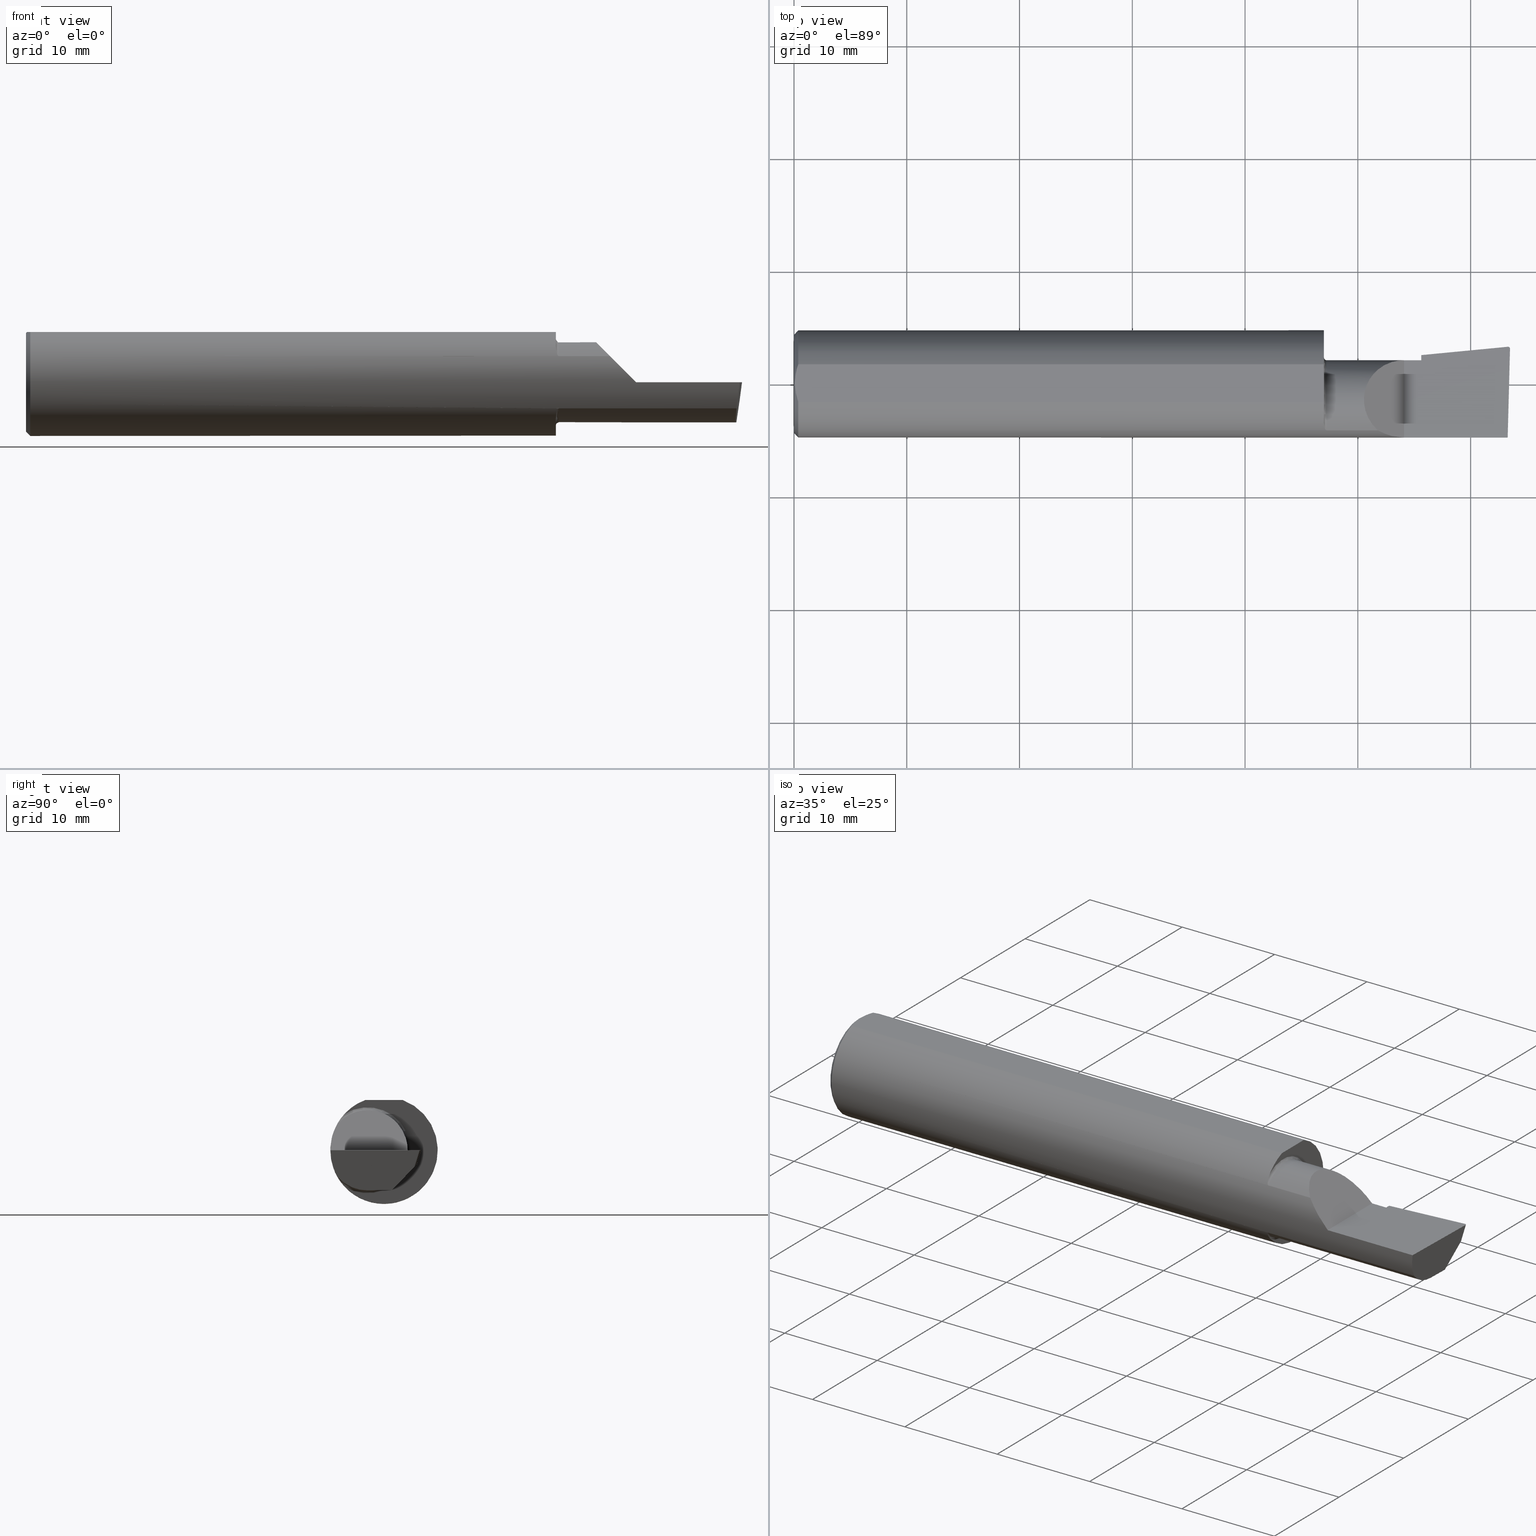
[diagram: canonical four-view strip — front | top / right | iso, engineering-drawing reading convention]
A machine part, canonical four-view strip (front | top / right | iso — engineering-drawing reading convention). The complete STEP part file that produces these views, byte-faithful:
ISO-10303-21;
HEADER;
FILE_DESCRIPTION (( 'STEP AP203' ),
    '1' );
FILE_NAME ('213657-B320600R.STEP',
    '2024-04-12T23:11:10',
    ( '' ),
    ( '' ),
    'SwSTEP 2.0',
    'SolidWorks 2022',
    '' );
FILE_SCHEMA (( 'CONFIG_CONTROL_DESIGN' ));
ENDSEC;

DATA;
#1 = EDGE_CURVE ( 'NONE', #558, #126, #669, .T. ) ;
#2 = CARTESIAN_POINT ( 'NONE',  ( 2.499806390372749210, 0.1232563466314183787, 6.833120963331979760E-17 ) ) ;
#3 = ORIENTED_EDGE ( 'NONE', *, *, #1, .T. ) ;
#4 = CARTESIAN_POINT ( 'NONE',  ( 2.486346664144835739, 0.1139780975458775103, -0.04999999999999999584 ) ) ;
#5 = AXIS2_PLACEMENT_3D ( 'NONE', #471, #527, #468 ) ;
#6 = ORIENTED_EDGE ( 'NONE', *, *, #367, .T. ) ;
#7 = CARTESIAN_POINT ( 'NONE',  ( 1.850530357231195522, -0.1482623167742068426, 0.1147852156680473495 ) ) ;
#8 = ORIENTED_EDGE ( 'NONE', *, *, #573, .F. ) ;
#9 = CARTESIAN_POINT ( 'NONE',  ( 2.491672876940991710, -0.1873499999999999888, 6.915950918908297591E-17 ) ) ;
#10 = AXIS2_PLACEMENT_3D ( 'NONE', #476, #200, #363 ) ;
#11 = ORIENTED_EDGE ( 'NONE', *, *, #444, .T. ) ;
#12 = DIRECTION ( 'NONE',  ( -1.000000000000000000, -6.829619984160658046E-18, -0.000000000000000000 ) ) ;
#13 = ORIENTED_EDGE ( 'NONE', *, *, #399, .T. ) ;
#14 = CARTESIAN_POINT ( 'NONE',  ( 2.189999999999999947, 0.06670933817657886955, -0.06931012851386068874 ) ) ;
#15 = EDGE_LOOP ( 'NONE', ( #172, #425, #663, #174, #437, #22, #238, #591, #234, #598 ) ) ;
#16 = CALENDAR_DATE ( 2024, 12, 4 ) ;
#17 = ORIENTED_EDGE ( 'NONE', *, *, #347, .F. ) ;
#18 = CARTESIAN_POINT ( 'NONE',  ( 2.493512870449283714, 0.1299961668063693288, 6.829619984160658046E-17 ) ) ;
#19 = ADVANCED_FACE ( 'NONE', ( #291 ), #589, .T. ) ;
#20 = AXIS2_PLACEMENT_3D ( 'NONE', #56, #549, #114 ) ;
#21 = CC_DESIGN_APPROVAL ( #366, ( #586 ) ) ;
#22 = ORIENTED_EDGE ( 'NONE', *, *, #117, .T. ) ;
#23 = CARTESIAN_POINT ( 'NONE',  ( 2.491672876940991710, -0.1873499999999999888, 6.915950918908297591E-17 ) ) ;
#24 = ORIENTED_EDGE ( 'NONE', *, *, #475, .F. ) ;
#25 = CALENDAR_DATE ( 2024, 12, 4 ) ;
#26 = EDGE_CURVE ( 'NONE', #184, #557, #296, .T. ) ;
#27 = DIRECTION ( 'NONE',  ( 0.000000000000000000, 1.000000000000000000, 0.000000000000000000 ) ) ;
#28 = LINE ( 'NONE', #404, #358 ) ;
#29 = EDGE_CURVE ( 'NONE', #118, #619, #276, .T. ) ;
#30 = DATE_AND_TIME ( #402, #493 ) ;
#31 = ORIENTED_EDGE ( 'NONE', *, *, #393, .T. ) ;
#32 = DIRECTION ( 'NONE',  ( -1.000000000000000000, -6.829619984160658046E-18, -0.000000000000000000 ) ) ;
#33 = AXIS2_PLACEMENT_3D ( 'NONE', #107, #692, #494 ) ;
#34 =( BOUNDED_CURVE ( )  B_SPLINE_CURVE ( 3, ( #563, #131, #349, #658 ),
 .UNSPECIFIED., .F., .T. ) 
 B_SPLINE_CURVE_WITH_KNOTS ( ( 4, 4 ),
 ( 5.422530673488458852, 7.853981633974482790 ),
 .UNSPECIFIED. ) 
 CURVE ( )  GEOMETRIC_REPRESENTATION_ITEM ( )  RATIONAL_B_SPLINE_CURVE ( ( 1.000000000000000000, 0.5651045289226863666, 0.5651045289226863666, 1.000000000000000000 ) ) 
 REPRESENTATION_ITEM ( '' )  );
#35 = DATE_AND_TIME ( #179, #526 ) ;
#36 = CARTESIAN_POINT ( 'NONE',  ( 2.475850273311264615, -0.1244607267090816621, -0.1422282308645907711 ) ) ;
#37 = CARTESIAN_POINT ( 'NONE',  ( 1.855249642630817153, -0.1607705839484630805, -0.09620717711675592920 ) ) ;
#38 = CARTESIAN_POINT ( 'NONE',  ( 2.486748873877666188, 0.1140025764947606296, -0.05001468779820768262 ) ) ;
#39 = DIRECTION ( 'NONE',  ( -1.000000000000000000, -6.829619984160658046E-18, -0.000000000000000000 ) ) ;
#40 = CARTESIAN_POINT ( 'NONE',  ( 2.024999999999999911, -0.1635956445993030084, -0.09130436773856176469 ) ) ;
#41 = VECTOR ( 'NONE', #410, 39.37007874015748143 ) ;
#42 = CARTESIAN_POINT ( 'NONE',  ( 2.097861799102314961, -0.1873500000000000165, 0.03213820089768509858 ) ) ;
#43 = DIRECTION ( 'NONE',  ( -1.000000000000000000, -0.000000000000000000, -0.000000000000000000 ) ) ;
#44 = CARTESIAN_POINT ( 'NONE',  ( 0.01499999999999999424, 0.000000000000000000, 0.000000000000000000 ) ) ;
#45 = CARTESIAN_POINT ( 'NONE',  ( 1.856503643436637763, -0.1620795007490428707, -0.09397341491037329575 ) ) ;
#46 = EDGE_CURVE ( 'NONE', #506, #557, #34, .T. ) ;
#47 = CARTESIAN_POINT ( 'NONE',  ( 2.129999999999999893, 0.08264999999999990410, 1.065442715258197396E-16 ) ) ;
#48 = VECTOR ( 'NONE', #491, 39.37007874015748854 ) ;
#49 = CARTESIAN_POINT ( 'NONE',  ( 0.004115035183746292881, 0.02255629470626744487, 0.1753499999999999781 ) ) ;
#50 = PRODUCT_DEFINITION_FORMATION_WITH_SPECIFIED_SOURCE ( 'ANY', '', #602, .NOT_KNOWN. ) ;
#51 = ORIENTED_EDGE ( 'NONE', *, *, #472, .F. ) ;
#52 = DIRECTION ( 'NONE',  ( 0.000000000000000000, -1.438723400918613551E-16, -1.000000000000000000 ) ) ;
#53 = CIRCLE ( 'NONE', #576, 0.1873499999999999888 ) ;
#54 = ORIENTED_EDGE ( 'NONE', *, *, #29, .F. ) ;
#55 = PLANE ( 'NONE',  #143 ) ;
#56 = CARTESIAN_POINT ( 'NONE',  ( 1.860000000000000098, -0.05739999999999999963, 0.000000000000000000 ) ) ;
#57 = ORIENTED_EDGE ( 'NONE', *, *, #367, .F. ) ;
#58 = LINE ( 'NONE', #109, #652 ) ;
#59 = FACE_OUTER_BOUND ( 'NONE', #540, .T. ) ;
#60 = ORIENTED_EDGE ( 'NONE', *, *, #627, .T. ) ;
#61 = CARTESIAN_POINT ( 'NONE',  ( 2.493766568580444432, 0.1168246249203732934, -0.04780233936830599606 ) ) ;
#62 = CARTESIAN_POINT ( 'NONE',  ( 0.000000000000000000, -0.05740000000000001351, 0.000000000000000000 ) ) ;
#63 = ORIENTED_EDGE ( 'NONE', *, *, #196, .F. ) ;
#64 = DIRECTION ( 'NONE',  ( 4.755568962650852797E-18, -0.6963153109074924352, -0.7177360153954948085 ) ) ;
#65 = CIRCLE ( 'NONE', #313, 0.1500499999999999889 ) ;
#66 = ORIENTED_EDGE ( 'NONE', *, *, #1, .F. ) ;
#67 = PERSON_AND_ORGANIZATION ( #140, #620 ) ;
#68 = VERTEX_POINT ( 'NONE', #80 ) ;
#69 = CARTESIAN_POINT ( 'NONE',  ( 2.189999999999999947, 0.08544315931885974880, -0.04999999999999999584 ) ) ;
#70 = VERTEX_POINT ( 'NONE', #345 ) ;
#71 = PERSON_AND_ORGANIZATION_ROLE ( 'design_supplier' ) ;
#72 = VERTEX_POINT ( 'NONE', #242 ) ;
#73 = DIRECTION ( 'NONE',  ( -0.09165774897393341725, 0.9519021185660614393, -0.2923717047227303856 ) ) ;
#74 = AXIS2_PLACEMENT_3D ( 'NONE', #564, #32, #508 ) ;
#75 = ORIENTED_EDGE ( 'NONE', *, *, #545, .T. ) ;
#76 = ADVANCED_FACE ( 'NONE', ( #355 ), #570, .T. ) ;
#77 = APPROVAL_STATUS ( 'not_yet_approved' ) ;
#78 = EDGE_LOOP ( 'NONE', ( #31, #150, #60, #83 ) ) ;
#79 = CARTESIAN_POINT ( 'NONE',  ( 2.484117089522337452, -0.1792580844883771007, -0.06324101202936138755 ) ) ;
#80 = CARTESIAN_POINT ( 'NONE',  ( 2.491786964307025176, 0.1037103972642545030, -0.06112352112763053125 ) ) ;
#81 = DIRECTION ( 'NONE',  ( 0.000000000000000000, -1.000000000000000000, 0.000000000000000000 ) ) ;
#82 = PERSON_AND_ORGANIZATION ( #140, #620 ) ;
#83 = ORIENTED_EDGE ( 'NONE', *, *, #97, .F. ) ;
#84 = DIRECTION ( 'NONE',  ( -0.9922060308645608284, 0.02598182930461468559, 0.1218693434050591162 ) ) ;
#85 = EDGE_CURVE ( 'NONE', #434, #228, #90, .T. ) ;
#86 = TOROIDAL_SURFACE ( 'NONE', #20, 0.1500499999999999889, 0.009999999999999944697 ) ;
#87 = LOCAL_TIME ( 16, 11, 10.00000000000000000, #616 ) ;
#88 = DIRECTION ( 'NONE',  ( -0.1240019227988267692, -0.3022330132596590113, -0.9451342385281470415 ) ) ;
#89 = CARTESIAN_POINT ( 'NONE',  ( 1.858200855161538323, -0.1632467142437135921, -0.09192985110639206869 ) ) ;
#90 = LINE ( 'NONE', #677, #528 ) ;
#91 = CARTESIAN_POINT ( 'NONE',  ( 0.01499999999999997863, -0.06597272163553657975, 0.1753499999999999781 ) ) ;
#92 = CARTESIAN_POINT ( 'NONE',  ( 2.486947077001955719, 0.1139931928746992507, -0.05004403198038587242 ) ) ;
#93 =( BOUNDED_CURVE ( )  B_SPLINE_CURVE ( 3, ( #588, #253, #102, #592 ),
 .UNSPECIFIED., .F., .T. ) 
 B_SPLINE_CURVE_WITH_KNOTS ( ( 4, 4 ),
 ( 3.156599629463173073, 4.715023529952365955 ),
 .UNSPECIFIED. ) 
 CURVE ( )  GEOMETRIC_REPRESENTATION_ITEM ( )  RATIONAL_B_SPLINE_CURVE ( ( 1.000000000000000000, 0.8076450242550562431, 0.8076450242550562431, 1.000000000000000000 ) ) 
 REPRESENTATION_ITEM ( '' )  );
#94 = LINE ( 'NONE', #421, #672 ) ;
#95 = DIRECTION ( 'NONE',  ( 0.000000000000000000, 0.000000000000000000, -1.000000000000000000 ) ) ;
#96 = CIRCLE ( 'NONE', #389, 0.1400499999999999801 ) ;
#97 = EDGE_CURVE ( 'NONE', #487, #118, #65, .T. ) ;
#98 = CARTESIAN_POINT ( 'NONE',  ( 0.004093196532652216939, -0.02240707710020816909, 0.1753499999999999504 ) ) ;
#99 = VECTOR ( 'NONE', #324, 39.37007874015748143 ) ;
#100 = DIRECTION ( 'NONE',  ( 0.000000000000000000, -1.000000000000000000, 0.000000000000000000 ) ) ;
#101 = PLANE ( 'NONE',  #170 ) ;
#102 = CARTESIAN_POINT ( 'NONE',  ( 2.492671897414695081, 0.1095727882432247086, -0.05516861643763537604 ) ) ;
#103 = DIRECTION ( 'NONE',  ( 1.000000000000000000, 0.000000000000000000, 0.000000000000000000 ) ) ;
#104 = VERTEX_POINT ( 'NONE', #411 ) ;
#105 = LINE ( 'NONE', #192, #197 ) ;
#106 = B_SPLINE_CURVE_WITH_KNOTS ( 'NONE', 3,
 ( #211, #432, #7, #215, #273, #435, #387, #651, #162, #384, #604, #220 ),
 .UNSPECIFIED., .F., .F.,
 ( 4, 2, 2, 2, 2, 4 ),
 ( 0.0009392928737449068215, 0.001524303482983960841, 0.001816808787603487905, 0.001963061439913248510, 0.002036187766068128704, 0.002109314092223008898 ),
 .UNSPECIFIED. ) ;
#107 = CARTESIAN_POINT ( 'NONE',  ( 2.189999999999999947, 0.1008003950587628567, 0.000000000000000000 ) ) ;
#108 = ORIENTED_EDGE ( 'NONE', *, *, #315, .F. ) ;
#109 = CARTESIAN_POINT ( 'NONE',  ( 0.01499999999999999424, 0.000000000000000000, -0.1873499999999999888 ) ) ;
#110 = DIRECTION ( 'NONE',  ( 0.000000000000000000, 0.000000000000000000, 1.000000000000000000 ) ) ;
#111 = AXIS2_PLACEMENT_3D ( 'NONE', #541, #154, #263 ) ;
#112 = EDGE_LOOP ( 'NONE', ( #375, #274, #460, #232, #6, #650, #403, #24 ) ) ;
#113 = DIRECTION ( 'NONE',  ( -0.7071067811865511255, 0.000000000000000000, 0.7071067811865437980 ) ) ;
#114 = DIRECTION ( 'NONE',  ( 6.829619984160658046E-18, -1.000000000000000000, 0.000000000000000000 ) ) ;
#115 = ORIENTED_EDGE ( 'NONE', *, *, #168, .F. ) ;
#116 = CARTESIAN_POINT ( 'NONE',  ( 1.850000000000000311, -0.1383256097560975062, -0.1263568288047932087 ) ) ;
#117 = EDGE_CURVE ( 'NONE', #557, #567, #305, .T. ) ;
#118 = VERTEX_POINT ( 'NONE', #198 ) ;
#119 = LINE ( 'NONE', #61, #608 ) ;
#120 = CARTESIAN_POINT ( 'NONE',  ( 1.850000000000000311, 0.000000000000000000, 0.000000000000000000 ) ) ;
#121 = DIRECTION ( 'NONE',  ( -1.000000000000000000, 0.000000000000000000, 1.033731667140896077E-16 ) ) ;
#122 = DIRECTION ( 'NONE',  ( -0.000000000000000000, 1.000000000000000000, -0.000000000000000000 ) ) ;
#123 = CARTESIAN_POINT ( 'NONE',  ( 2.189999999999999947, 0.06670933817657886955, -0.06931012851386068874 ) ) ;
#124 = ORIENTED_EDGE ( 'NONE', *, *, #420, .F. ) ;
#125 = CALENDAR_DATE ( 2024, 12, 4 ) ;
#126 = VERTEX_POINT ( 'NONE', #417 ) ;
#127 = DIRECTION ( 'NONE',  ( -4.858719700838190352E-34, -8.537024980200821325E-17, 1.000000000000000000 ) ) ;
#128 = AXIS2_PLACEMENT_3D ( 'NONE', #350, #181, #81 ) ;
#129 = ORIENTED_EDGE ( 'NONE', *, *, #545, .F. ) ;
#130 = DATE_AND_TIME ( #16, #310 ) ;
#131 = CARTESIAN_POINT ( 'NONE',  ( 1.921229036482944075, -0.06260079402492431389, 0.2087709635170538203 ) ) ;
#132 = CARTESIAN_POINT ( 'NONE',  ( 1.850000000000000311, -0.1383256097560975062, 0.1263568288047932087 ) ) ;
#133 = VECTOR ( 'NONE', #406, 39.37007874015748143 ) ;
#134 = DESIGN_CONTEXT ( 'detailed design', #321, 'design' ) ;
#135 = APPLICATION_PROTOCOL_DEFINITION ( 'international standard', 'config_control_design', 1994, #321 ) ;
#136 = CARTESIAN_POINT ( 'NONE',  ( 2.481080296960508580, -0.1635956445993030084, -0.09130436773856176469 ) ) ;
#137 = CARTESIAN_POINT ( 'NONE',  ( 1.850000000000000311, 0.06597272163553663527, 0.1753499999999999781 ) ) ;
#138 = AXIS2_PLACEMENT_3D ( 'NONE', #682, #368, #529 ) ;
#139 = EDGE_CURVE ( 'NONE', #104, #513, #53, .T. ) ;
#140 = PERSON ( 'UNSPECIFIED', 'UNSPECIFIED', 'UNSPECIFIED', ('UNSPECIFIED'), ('UNSPECIFIED'), ('UNSPECIFIED') ) ;
#141 = CARTESIAN_POINT ( 'NONE',  ( 2.066758987970638284, -0.1792580844883770730, 0.06324101202936138755 ) ) ;
#142 = CARTESIAN_POINT ( 'NONE',  ( 2.499910038027473025, 0.1272144908750952319, 6.760805322059822821E-17 ) ) ;
#143 = AXIS2_PLACEMENT_3D ( 'NONE', #547, #645, #113 ) ;
#144 = CARTESIAN_POINT ( 'NONE',  ( 2.189999999999999947, 0.08265000000000004288, 3.267291166268305196E-16 ) ) ;
#145 = CARTESIAN_POINT ( 'NONE',  ( 2.486548593472165170, 0.1139975411286092838, -0.05000000000000003053 ) ) ;
#146 = EDGE_CURVE ( 'NONE', #323, #625, #464, .T. ) ;
#147 = DIRECTION ( 'NONE',  ( 0.000000000000000000, 0.000000000000000000, 1.000000000000000000 ) ) ;
#148 = CARTESIAN_POINT ( 'NONE',  ( 2.490039159128059953, -0.2497391662021650194, 6.932588350567417155E-17 ) ) ;
#149 = AXIS2_PLACEMENT_3D ( 'NONE', #120, #507, #27 ) ;
#150 = ORIENTED_EDGE ( 'NONE', *, *, #623, .T. ) ;
#151 = DIRECTION ( 'NONE',  ( 0.000000000000000000, 1.000000000000000000, 8.537024980200821325E-17 ) ) ;
#152 =( LENGTH_UNIT ( ) NAMED_UNIT ( * ) SI_UNIT ( $, .METRE. ) );
#153 = ORIENTED_EDGE ( 'NONE', *, *, #593, .T. ) ;
#154 = DIRECTION ( 'NONE',  ( -1.000000000000000000, -6.829619984160658046E-18, 0.000000000000000000 ) ) ;
#155 = AXIS2_PLACEMENT_3D ( 'NONE', #597, #110, #326 ) ;
#156 = CARTESIAN_POINT ( 'NONE',  ( 1.850000000000000311, 0.2373500000000000332, 0.1753499999999999504 ) ) ;
#157 = ORIENTED_EDGE ( 'NONE', *, *, #690, .T. ) ;
#158 = LINE ( 'NONE', #278, #408 ) ;
#159 = LINE ( 'NONE', #322, #630 ) ;
#160 = CC_DESIGN_DATE_AND_TIME_ASSIGNMENT ( #30, #280, ( #586 ) ) ;
#161 = EDGE_LOOP ( 'NONE', ( #503, #666, #504, #214, #334, #383, #129, #621, #552, #17, #283, #54, #268 ) ) ;
#162 = CARTESIAN_POINT ( 'NONE',  ( 1.857002686248069967, -0.1625222757049325228, 0.09320450095779621302 ) ) ;
#163 = EDGE_CURVE ( 'NONE', #319, #513, #473, .T. ) ;
#164 = EDGE_CURVE ( 'NONE', #262, #294, #478, .T. ) ;
#165 = CARTESIAN_POINT ( 'NONE',  ( 0.003000000000000218638, 2.334609556160449697E-17, 0.1753499999999999781 ) ) ;
#166 = ORIENTED_EDGE ( 'NONE', *, *, #475, .T. ) ;
#167 = FACE_OUTER_BOUND ( 'NONE', #187, .T. ) ;
#168 = EDGE_CURVE ( 'NONE', #340, #72, #423, .T. ) ;
#169 = SHAPE_DEFINITION_REPRESENTATION ( #492, #426 ) ;
#170 = AXIS2_PLACEMENT_3D ( 'NONE', #477, #362, #199 ) ;
#171 = AXIS2_PLACEMENT_3D ( 'NONE', #62, #12, #427 ) ;
#172 = ORIENTED_EDGE ( 'NONE', *, *, #572, .F. ) ;
#173 = CARTESIAN_POINT ( 'NONE',  ( 1.860000000000000098, -0.1635956445993029251, -0.09130436773856194510 ) ) ;
#174 = ORIENTED_EDGE ( 'NONE', *, *, #247, .T. ) ;
#175 = ORIENTED_EDGE ( 'NONE', *, *, #352, .T. ) ;
#176 = CARTESIAN_POINT ( 'NONE',  ( 2.487725449370724817, -0.1873500000000000443, -0.03213820089768506388 ) ) ;
#177 = EDGE_LOOP ( 'NONE', ( #204, #550 ) ) ;
#178 = CC_DESIGN_PERSON_AND_ORGANIZATION_ASSIGNMENT ( #624, #71, ( #50 ) ) ;
#179 = CALENDAR_DATE ( 2024, 12, 4 ) ;
#180 = ORIENTED_EDGE ( 'NONE', *, *, #543, .F. ) ;
#181 = DIRECTION ( 'NONE',  ( 1.000000000000000000, 6.829619984160658046E-18, 0.000000000000000000 ) ) ;
#182 = ORIENTED_EDGE ( 'NONE', *, *, #465, .F. ) ;
#183 = COORDINATED_UNIVERSAL_TIME_OFFSET ( 8, 0, .BEHIND. ) ;
#184 = VERTEX_POINT ( 'NONE', #637 ) ;
#185 = LINE ( 'NONE', #395, #285 ) ;
#186 = APPROVAL_DATE_TIME ( #130, #633 ) ;
#187 = EDGE_LOOP ( 'NONE', ( #490, #51, #301, #8, #386 ) ) ;
#188 = FACE_OUTER_BOUND ( 'NONE', #565, .T. ) ;
#189 = DIRECTION ( 'NONE',  ( -0.1240019227988267969, -0.3022330132596590668, -0.9451342385281472636 ) ) ;
#190 = DIRECTION ( 'NONE',  ( -1.000000000000000000, -6.829619984160658046E-18, -0.000000000000000000 ) ) ;
#191 = CARTESIAN_POINT ( 'NONE',  ( 1.860000000000000098, -0.1635956445993029529, 0.09130436773856188959 ) ) ;
#192 = CARTESIAN_POINT ( 'NONE',  ( 2.024999999999999911, -0.1635956445993030084, 0.09130436773856176469 ) ) ;
#193 = CC_DESIGN_SECURITY_CLASSIFICATION ( #586, ( #50 ) ) ;
#194 = DIRECTION ( 'NONE',  ( 0.000000000000000000, -1.000000000000000000, -8.537024980200821325E-17 ) ) ;
#195 = DIRECTION ( 'NONE',  ( -1.000000000000000000, -6.829619984160658046E-18, -0.000000000000000000 ) ) ;
#196 = EDGE_CURVE ( 'NONE', #644, #434, #248, .T. ) ;
#197 = VECTOR ( 'NONE', #470, 39.37007874015748143 ) ;
#198 = CARTESIAN_POINT ( 'NONE',  ( 1.850000000000000311, -0.1383256097560975062, -0.1263568288047932087 ) ) ;
#199 = DIRECTION ( 'NONE',  ( 0.000000000000000000, 0.6963153109074925462, 0.7177360153954948085 ) ) ;
#200 = DIRECTION ( 'NONE',  ( -1.000000000000000000, -6.829619984160658046E-18, 0.000000000000000000 ) ) ;
#201 = DIRECTION ( 'NONE',  ( 2.005228508682077051E-18, -0.2936076258024061247, -0.9559260233253795702 ) ) ;
#202 = CARTESIAN_POINT ( 'NONE',  ( 2.189999999999999947, -0.05739999999999999963, -0.1400500000000000633 ) ) ;
#203 = CARTESIAN_POINT ( 'NONE',  ( 2.189999999999999947, 0.09745742888373046253, -0.01088401009027229610 ) ) ;
#204 = ORIENTED_EDGE ( 'NONE', *, *, #465, .T. ) ;
#205 = CARTESIAN_POINT ( 'NONE',  ( 2.499806390372749210, 0.1232563466314183787, 6.833120963331979760E-17 ) ) ;
#206 = DIRECTION ( 'NONE',  ( 6.829619984160658046E-18, -1.000000000000000000, 1.438723400918613551E-16 ) ) ;
#207 = ORIENTED_EDGE ( 'NONE', *, *, #246, .F. ) ;
#208 = CARTESIAN_POINT ( 'NONE',  ( 2.500000000000000000, -0.2500000000000000555, 6.829619984160658046E-17 ) ) ;
#209 = CARTESIAN_POINT ( 'NONE',  ( 0.003000000000000169632, 0.01127363201155560934, 0.1753499999999999781 ) ) ;
#210 = EDGE_LOOP ( 'NONE', ( #327, #534, #207, #289 ) ) ;
#211 = CARTESIAN_POINT ( 'NONE',  ( 1.850000000000000311, -0.1383256097560975062, 0.1263568288047932087 ) ) ;
#212 = VECTOR ( 'NONE', #364, 39.37007874015748143 ) ;
#213 = CYLINDRICAL_SURFACE ( 'NONE', #171, 0.1400500000000000078 ) ;
#214 = ORIENTED_EDGE ( 'NONE', *, *, #531, .T. ) ;
#215 = CARTESIAN_POINT ( 'NONE',  ( 1.852291668372491484, -0.1548472237252444261, 0.1055305370847128416 ) ) ;
#216 = ADVANCED_FACE ( 'NONE', ( #640 ), #369, .F. ) ;
#217 = EDGE_CURVE ( 'NONE', #228, #68, #93, .T. ) ;
#218 = CARTESIAN_POINT ( 'NONE',  ( 0.01499999999999999424, 0.000000000000000000, 0.000000000000000000 ) ) ;
#219 = ORIENTED_EDGE ( 'NONE', *, *, #671, .T. ) ;
#220 = CARTESIAN_POINT ( 'NONE',  ( 1.860000000000000098, -0.1635956445993029529, 0.09130436773856188959 ) ) ;
#221 = ORIENTED_EDGE ( 'NONE', *, *, #196, .T. ) ;
#222 =( NAMED_UNIT ( * ) PLANE_ANGLE_UNIT ( ) SI_UNIT ( $, .RADIAN. ) );
#223 = ORIENTED_EDGE ( 'NONE', *, *, #85, .F. ) ;
#224 = CARTESIAN_POINT ( 'NONE',  ( 2.189999999999999947, 0.06026672169836850418, -0.07595093880103591377 ) ) ;
#225 = VERTEX_POINT ( 'NONE', #316 ) ;
#226 = COORDINATED_UNIVERSAL_TIME_OFFSET ( 8, 0, .BEHIND. ) ;
#227 = AXIS2_PLACEMENT_3D ( 'NONE', #218, #103, #500 ) ;
#228 = VERTEX_POINT ( 'NONE', #255 ) ;
#229 = CYLINDRICAL_SURFACE ( 'NONE', #594, 0.006499999999999996232 ) ;
#230 = APPROVAL_PERSON_ORGANIZATION ( #396, #366, #300 ) ;
#231 = CC_DESIGN_PERSON_AND_ORGANIZATION_ASSIGNMENT ( #82, #441, ( #50 ) ) ;
#232 = ORIENTED_EDGE ( 'NONE', *, *, #370, .F. ) ;
#233 = APPROVAL_STATUS ( 'not_yet_approved' ) ;
#234 = ORIENTED_EDGE ( 'NONE', *, *, #245, .T. ) ;
#235 = PLANE ( 'NONE',  #584 ) ;
#236 = AXIS2_PLACEMENT_3D ( 'NONE', #496, #52, #328 ) ;
#237 = ORIENTED_EDGE ( 'NONE', *, *, #347, .T. ) ;
#238 = ORIENTED_EDGE ( 'NONE', *, *, #420, .T. ) ;
#239 = CARTESIAN_POINT ( 'NONE',  ( 2.492906680581862044, 0.1299669910246663562, 6.902945873237403297E-17 ) ) ;
#240 = PRODUCT_RELATED_PRODUCT_CATEGORY ( 'detail', '', ( #602 ) ) ;
#241 = PERSON_AND_ORGANIZATION_ROLE ( 'classification_officer' ) ;
#242 = CARTESIAN_POINT ( 'NONE',  ( 2.189999999999999947, -0.001919314351446948456, -0.1400500000000000911 ) ) ;
#243 = CARTESIAN_POINT ( 'NONE',  ( 2.467035950088918739, 0.05927214514111213417, -0.1998254950914886141 ) ) ;
#244 = AXIS2_PLACEMENT_3D ( 'NONE', #36, #84, #676 ) ;
#245 = EDGE_CURVE ( 'NONE', #225, #340, #664, .T. ) ;
#246 = EDGE_CURVE ( 'NONE', #372, #228, #430, .T. ) ;
#247 = EDGE_CURVE ( 'NONE', #555, #506, #105, .T. ) ;
#248 =( BOUNDED_CURVE ( )  B_SPLINE_CURVE ( 3, ( #205, #142, #686, #413 ),
 .UNSPECIFIED., .F., .T. ) 
 B_SPLINE_CURVE_WITH_KNOTS ( ( 4, 4 ),
 ( 1.953092279228235029, 3.511516179717477648 ),
 .UNSPECIFIED. ) 
 CURVE ( )  GEOMETRIC_REPRESENTATION_ITEM ( )  RATIONAL_B_SPLINE_CURVE ( ( 1.000000000000000000, 0.8076450242550446967, 0.8076450242550446967, 1.000000000000000000 ) ) 
 REPRESENTATION_ITEM ( '' )  );
#249 = FACE_OUTER_BOUND ( 'NONE', #431, .T. ) ;
#250 = AXIS2_PLACEMENT_3D ( 'NONE', #373, #530, #95 ) ;
#251 = CARTESIAN_POINT ( 'NONE',  ( 1.854627300813618929, -0.1598199155693380280, -0.09778034674766643286 ) ) ;
#252 = CARTESIAN_POINT ( 'NONE',  ( 2.481080296960508580, -0.1635956445993030084, -0.09130436773856176469 ) ) ;
#253 = CARTESIAN_POINT ( 'NONE',  ( 2.490674366668010453, 0.1138167301160498412, -0.05059586115756908864 ) ) ;
#254 = CARTESIAN_POINT ( 'NONE',  ( 2.480058035321255794, 0.02601009779168077587, -0.1400500000000000633 ) ) ;
#255 = CARTESIAN_POINT ( 'NONE',  ( 2.486947077001955719, 0.1139931928746992507, -0.05004403198038587242 ) ) ;
#256 = AXIS2_PLACEMENT_3D ( 'NONE', #379, #376, #596 ) ;
#257 = CARTESIAN_POINT ( 'NONE',  ( 2.486481331858358956, 0.1143063265598175254, -0.04897357182854628760 ) ) ;
#258 = CARTESIAN_POINT ( 'NONE',  ( 2.129999999999999893, -0.1873499999999999888, 1.065442715258197396E-16 ) ) ;
#259 =( GEOMETRIC_REPRESENTATION_CONTEXT ( 3 ) GLOBAL_UNCERTAINTY_ASSIGNED_CONTEXT ( ( #462 ) ) GLOBAL_UNIT_ASSIGNED_CONTEXT ( ( #374, #222, #382 ) ) REPRESENTATION_CONTEXT ( 'NONE', 'WORKASPACE' ) );
#260 = FACE_OUTER_BOUND ( 'NONE', #78, .T. ) ;
#261 = EDGE_CURVE ( 'NONE', #281, #225, #415, .T. ) ;
#262 = VERTEX_POINT ( 'NONE', #535 ) ;
#263 = DIRECTION ( 'NONE',  ( 6.829619984160658046E-18, -1.000000000000000000, 0.000000000000000000 ) ) ;
#264 = B_SPLINE_CURVE_WITH_KNOTS ( 'NONE', 3,
 ( #165, #209, #49, #385, #333, #482 ),
 .UNSPECIFIED., .F., .F.,
 ( 4, 2, 4 ),
 ( 0.003480013901590607410, 0.004330767971208083697, 0.005181522040825559984 ),
 .UNSPECIFIED. ) ;
#265 = ORIENTED_EDGE ( 'NONE', *, *, #573, .T. ) ;
#266 = LINE ( 'NONE', #269, #48 ) ;
#267 = EDGE_CURVE ( 'NONE', #277, #184, #158, .T. ) ;
#268 = ORIENTED_EDGE ( 'NONE', *, *, #627, .F. ) ;
#269 = CARTESIAN_POINT ( 'NONE',  ( 2.491859106488688358, 0.02714641170210413054, -0.1400500000000000633 ) ) ;
#270 = AXIS2_PLACEMENT_3D ( 'NONE', #626, #628, #302 ) ;
#271 = FACE_OUTER_BOUND ( 'NONE', #15, .T. ) ;
#272 = ORIENTED_EDGE ( 'NONE', *, *, #649, .T. ) ;
#273 = CARTESIAN_POINT ( 'NONE',  ( 1.853030094855348642, -0.1569359418858942423, 0.1023945457153807304 ) ) ;
#274 = ORIENTED_EDGE ( 'NONE', *, *, #246, .T. ) ;
#275 = LINE ( 'NONE', #156, #481 ) ;
#276 = CIRCLE ( 'NONE', #149, 0.1873499999999999888 ) ;
#277 = VERTEX_POINT ( 'NONE', #9 ) ;
#278 = CARTESIAN_POINT ( 'NONE',  ( 3.377502344341257155E-32, -0.1873499999999999610, 3.267291166268304703E-16 ) ) ;
#279 = EDGE_LOOP ( 'NONE', ( #378, #647, #615 ) ) ;
#280 = DATE_TIME_ROLE ( 'classification_date' ) ;
#281 = VERTEX_POINT ( 'NONE', #224 ) ;
#282 = PLANE ( 'NONE',  #244 ) ;
#283 = ORIENTED_EDGE ( 'NONE', *, *, #472, .T. ) ;
#284 = COORDINATED_UNIVERSAL_TIME_OFFSET ( 8, 0, .BEHIND. ) ;
#285 = VECTOR ( 'NONE', #622, 39.37007874015748854 ) ;
#286 = EDGE_LOOP ( 'NONE', ( #693, #390 ) ) ;
#287 = DIRECTION ( 'NONE',  ( 0.000000000000000000, 0.2936076258024060692, 0.9559260233253795702 ) ) ;
#288 = CC_DESIGN_APPROVAL ( #582, ( #50 ) ) ;
#289 = ORIENTED_EDGE ( 'NONE', *, *, #579, .F. ) ;
#290 = COORDINATED_UNIVERSAL_TIME_OFFSET ( 8, 0, .BEHIND. ) ;
#291 = FACE_OUTER_BOUND ( 'NONE', #338, .T. ) ;
#292 = DIRECTION ( 'NONE',  ( 0.000000000000000000, 0.9524855432518806175, -0.3045837978228160825 ) ) ;
#293 = VECTOR ( 'NONE', #523, 39.37007874015748143 ) ;
#294 = VERTEX_POINT ( 'NONE', #173 ) ;
#295 = ADVANCED_FACE ( 'NONE', ( #599 ), #335, .F. ) ;
#296 = LINE ( 'NONE', #613, #351 ) ;
#297 = CARTESIAN_POINT ( 'NONE',  ( 2.509953961983671711, 0.1316084575252021438, -6.829619984160658046E-17 ) ) ;
#298 = ADVANCED_FACE ( 'NONE', ( #502 ), #55, .F. ) ;
#299 = ADVANCED_FACE ( 'NONE', ( #167 ), #607, .F. ) ;
#300 = APPROVAL_ROLE ( '' ) ;
#301 = ORIENTED_EDGE ( 'NONE', *, *, #649, .F. ) ;
#302 = DIRECTION ( 'NONE',  ( 0.000000000000000000, 0.9524855432518806175, -0.3045837978228160825 ) ) ;
#303 = APPLICATION_CONTEXT ( 'configuration controlled 3d designs of mechanical parts and assemblies' ) ;
#304 = CARTESIAN_POINT ( 'NONE',  ( 1.856977885846546661, -0.1625039841807085217, -0.09323648621225567867 ) ) ;
#305 = LINE ( 'NONE', #580, #293 ) ;
#306 = CARTESIAN_POINT ( 'NONE',  ( 0.008227791779583789808, -0.04447712204611815878, 0.1753499999999999781 ) ) ;
#307 = PRODUCT_DEFINITION ( 'UNKNOWN', '', #50, #134 ) ;
#308 = FACE_OUTER_BOUND ( 'NONE', #112, .T. ) ;
#309 =( BOUNDED_CURVE ( )  B_SPLINE_CURVE ( 3, ( #438, #655, #517, #515 ),
 .UNSPECIFIED., .F., .T. ) 
 B_SPLINE_CURVE_WITH_KNOTS ( ( 4, 4 ),
 ( 3.511516179717477648, 3.604018710826077942 ),
 .UNSPECIFIED. ) 
 CURVE ( )  GEOMETRIC_REPRESENTATION_ITEM ( )  RATIONAL_B_SPLINE_CURVE ( ( 1.000000000000000000, 0.9992870672494007511, 0.9992870672494007511, 1.000000000000000000 ) ) 
 REPRESENTATION_ITEM ( '' )  );
#310 = LOCAL_TIME ( 16, 11, 10.00000000000000000, #290 ) ;
#311 = LINE ( 'NONE', #203, #516 ) ;
#312 = DIRECTION ( 'NONE',  ( -1.000000000000000000, -0.000000000000000000, -0.000000000000000000 ) ) ;
#313 = AXIS2_PLACEMENT_3D ( 'NONE', #638, #190, #100 ) ;
#314 = CARTESIAN_POINT ( 'NONE',  ( 0.003000000000000218638, 2.334609556160449697E-17, 0.1753499999999999781 ) ) ;
#315 = EDGE_CURVE ( 'NONE', #323, #606, #611, .T. ) ;
#316 = CARTESIAN_POINT ( 'NONE',  ( 2.189999999999999947, 0.02208021110064902273, -0.1153121786430049006 ) ) ;
#317 = ADVANCED_FACE ( 'NONE', ( #659 ), #391, .F. ) ;
#318 = CARTESIAN_POINT ( 'NONE',  ( 1.850535130224571612, -0.1482744458446705882, -0.1147666934430601887 ) ) ;
#319 = VERTEX_POINT ( 'NONE', #484 ) ;
#320 = CARTESIAN_POINT ( 'NONE',  ( 2.486346664144835739, 0.1139780975458775103, -0.04999999999999999584 ) ) ;
#321 = APPLICATION_CONTEXT ( 'configuration controlled 3d designs of mechanical parts and assemblies' ) ;
#322 = CARTESIAN_POINT ( 'NONE',  ( 0.5470260790800310913, -0.05740000000000000657, 2.701812985571357332E-16 ) ) ;
#323 = VERTEX_POINT ( 'NONE', #694 ) ;
#324 = DIRECTION ( 'NONE',  ( 0.7071067811865390240, 8.659560562355036396E-17, 0.7071067811865560104 ) ) ;
#325 = CLOSED_SHELL ( 'NONE', ( #440, #19, #643, #76, #522, #600, #299, #295, #298, #216, #679, #674, #569, #687, #521, #548, #317, #497, #409 ) ) ;
#326 = DIRECTION ( 'NONE',  ( 1.000000000000000000, 0.000000000000000000, 0.000000000000000000 ) ) ;
#327 = ORIENTED_EDGE ( 'NONE', *, *, #399, .F. ) ;
#328 = DIRECTION ( 'NONE',  ( 0.000000000000000000, 1.000000000000000000, -1.438723400918613551E-16 ) ) ;
#329 = PLANE ( 'NONE',  #33 ) ;
#330 = ORIENTED_EDGE ( 'NONE', *, *, #217, .F. ) ;
#331 = LINE ( 'NONE', #461, #646 ) ;
#332 = AXIS2_PLACEMENT_3D ( 'NONE', #356, #449, #571 ) ;
#333 = CARTESIAN_POINT ( 'NONE',  ( 0.01125230581755086272, 0.05532998191409922023, 0.1753500000000000059 ) ) ;
#334 = ORIENTED_EDGE ( 'NONE', *, *, #247, .F. ) ;
#335 = PLANE ( 'NONE',  #416 ) ;
#336 = ORIENTED_EDGE ( 'NONE', *, *, #267, .F. ) ;
#337 = AXIS2_PLACEMENT_3D ( 'NONE', #610, #457, #511 ) ;
#338 = EDGE_LOOP ( 'NONE', ( #661, #445, #272, #237, #536 ) ) ;
#339 = LINE ( 'NONE', #568, #41 ) ;
#340 = VERTEX_POINT ( 'NONE', #648 ) ;
#341 = DIRECTION ( 'NONE',  ( 4.755568962650852797E-18, -0.6963153109074924352, -0.7177360153954948085 ) ) ;
#342 = ORIENTED_EDGE ( 'NONE', *, *, #370, .T. ) ;
#343 = PERSON_AND_ORGANIZATION ( #140, #620 ) ;
#344 = AXIS2_PLACEMENT_3D ( 'NONE', #639, #466, #479 ) ;
#345 = CARTESIAN_POINT ( 'NONE',  ( 2.189999999999999947, 0.1008003950587674780, 3.350782304728822623E-16 ) ) ;
#346 = DIRECTION ( 'NONE',  ( -1.000000000000000000, 5.691349986800549142E-18, -0.000000000000000000 ) ) ;
#347 = EDGE_CURVE ( 'NONE', #483, #104, #474, .T. ) ;
#348 = APPROVAL_DATE_TIME ( #673, #366 ) ;
#349 = CARTESIAN_POINT ( 'NONE',  ( 1.975085956200449022, 0.08265000000000000124, 0.1549140437995494002 ) ) ;
#350 = CARTESIAN_POINT ( 'NONE',  ( 2.189999999999999947, -0.05739999999999999963, 0.000000000000000000 ) ) ;
#351 = VECTOR ( 'NONE', #122, 39.37007874015748143 ) ;
#352 = EDGE_CURVE ( 'NONE', #625, #104, #58, .T. ) ;
#353 = DIRECTION ( 'NONE',  ( 0.000000000000000000, 0.000000000000000000, 1.000000000000000000 ) ) ;
#354 = DATE_TIME_ROLE ( 'creation_date' ) ;
#355 = FACE_OUTER_BOUND ( 'NONE', #603, .T. ) ;
#356 = CARTESIAN_POINT ( 'NONE',  ( 0.000000000000000000, 0.000000000000000000, 0.000000000000000000 ) ) ;
#357 = DIRECTION ( 'NONE',  ( 0.000000000000000000, -1.000000000000000000, 0.000000000000000000 ) ) ;
#358 = VECTOR ( 'NONE', #667, 39.37007874015748854 ) ;
#359 = CC_DESIGN_APPROVAL ( #633, ( #307 ) ) ;
#360 = APPROVAL_PERSON_ORGANIZATION ( #343, #582, #657 ) ;
#361 = CC_DESIGN_DATE_AND_TIME_ASSIGNMENT ( #405, #354, ( #307 ) ) ;
#362 = DIRECTION ( 'NONE',  ( -0.06894566448119621160, 0.7160281025913034503, -0.6946583704589934793 ) ) ;
#363 = DIRECTION ( 'NONE',  ( 6.829619984160658046E-18, -1.000000000000000000, 0.000000000000000000 ) ) ;
#364 = DIRECTION ( 'NONE',  ( -0.1240019227988267692, -0.3022330132596589558, -0.9451342385281472636 ) ) ;
#365 = CARTESIAN_POINT ( 'NONE',  ( 0.003000000000000172667, -0.01126410975715121283, 0.1753500000000000059 ) ) ;
#366 = APPROVAL ( #660, 'UNSPECIFIED' ) ;
#367 = EDGE_CURVE ( 'NONE', #558, #72, #266, .T. ) ;
#368 = DIRECTION ( 'NONE',  ( -1.000000000000000000, -0.000000000000000000, -0.000000000000000000 ) ) ;
#369 = PLANE ( 'NONE',  #250 ) ;
#370 = EDGE_CURVE ( 'NONE', #558, #68, #119, .T. ) ;
#371 = APPLICATION_PROTOCOL_DEFINITION ( 'international standard', 'config_control_design', 1994, #303 ) ;
#372 = VERTEX_POINT ( 'NONE', #4 ) ;
#373 = CARTESIAN_POINT ( 'NONE',  ( 0.000000000000000000, 0.000000000000000000, 0.000000000000000000 ) ) ;
#374 =( CONVERSION_BASED_UNIT ( 'INCH', #544 ) LENGTH_UNIT ( ) NAMED_UNIT ( #585 ) );
#375 = ORIENTED_EDGE ( 'NONE', *, *, #444, .F. ) ;
#376 = DIRECTION ( 'NONE',  ( -1.000000000000000000, -0.000000000000000000, -0.000000000000000000 ) ) ;
#377 = APPROVAL_PERSON_ORGANIZATION ( #665, #633, #459 ) ;
#378 = ORIENTED_EDGE ( 'NONE', *, *, #46, .F. ) ;
#379 = CARTESIAN_POINT ( 'NONE',  ( 0.01499999999999999424, 0.000000000000000000, 0.000000000000000000 ) ) ;
#380 =( BOUNDED_CURVE ( )  B_SPLINE_CURVE ( 3, ( #252, #577, #684, #581 ),
 .UNSPECIFIED., .F., .T. ) 
 B_SPLINE_CURVE_WITH_KNOTS ( ( 4, 4 ),
 ( 5.632580117768155148, 6.493234751459282528 ),
 .UNSPECIFIED. ) 
 CURVE ( )  GEOMETRIC_REPRESENTATION_ITEM ( )  RATIONAL_B_SPLINE_CURVE ( ( 1.000000000000000000, 0.9392195014330944058, 0.9392195014330944058, 1.000000000000000000 ) ) 
 REPRESENTATION_ITEM ( '' )  );
#381 = VECTOR ( 'NONE', #312, 39.37007874015748143 ) ;
#382 =( NAMED_UNIT ( * ) SI_UNIT ( $, .STERADIAN. ) SOLID_ANGLE_UNIT ( ) );
#383 = ORIENTED_EDGE ( 'NONE', *, *, #393, .F. ) ;
#384 = CARTESIAN_POINT ( 'NONE',  ( 1.858216394543445338, -0.1632528125625389848, 0.09191892236924030513 ) ) ;
#385 = CARTESIAN_POINT ( 'NONE',  ( 0.008244775919947424855, 0.04453482769755855164, 0.1753499999999999504 ) ) ;
#386 = ORIENTED_EDGE ( 'NONE', *, *, #163, .F. ) ;
#387 = CARTESIAN_POINT ( 'NONE',  ( 1.855270962286581282, -0.1607994114084981829, 0.09615890281982662768 ) ) ;
#388 = ORIENTED_EDGE ( 'NONE', *, *, #572, .T. ) ;
#389 = AXIS2_PLACEMENT_3D ( 'NONE', #520, #39, #357 ) ;
#390 = ORIENTED_EDGE ( 'NONE', *, *, #261, .T. ) ;
#391 = PLANE ( 'NONE',  #111 ) ;
#392 = EDGE_LOOP ( 'NONE', ( #509, #501, #166, #124 ) ) ;
#393 = EDGE_CURVE ( 'NONE', #487, #555, #106, .T. ) ;
#394 = CARTESIAN_POINT ( 'NONE',  ( 2.477889026591898247, -0.05682100378451882677, -0.1400500000000000633 ) ) ;
#395 = CARTESIAN_POINT ( 'NONE',  ( 2.189999999999999947, 0.06670933817657886955, -0.06931012851386068874 ) ) ;
#396 = PERSON_AND_ORGANIZATION ( #140, #620 ) ;
#397 = ORIENTED_EDGE ( 'NONE', *, *, #579, .T. ) ;
#398 = FACE_OUTER_BOUND ( 'NONE', #675, .T. ) ;
#399 = EDGE_CURVE ( 'NONE', #434, #455, #309, .T. ) ;
#400 = ORIENTED_EDGE ( 'NONE', *, *, #467, .F. ) ;
#401 = EDGE_CURVE ( 'NONE', #126, #340, #331, .T. ) ;
#402 = CALENDAR_DATE ( 2024, 12, 4 ) ;
#403 = ORIENTED_EDGE ( 'NONE', *, *, #261, .F. ) ;
#404 = CARTESIAN_POINT ( 'NONE',  ( 2.511419111345317923, 0.1163922996227946260, -0.04999999999999999584 ) ) ;
#405 = DATE_AND_TIME ( #25, #447 ) ;
#406 = DIRECTION ( 'NONE',  ( -0.02617694830779365364, -0.9996573249755593693, -8.535148296544462419E-17 ) ) ;
#407 = CARTESIAN_POINT ( 'NONE',  ( 2.038695632261437130, -0.1635956445993029529, 0.09130436773856191734 ) ) ;
#408 = VECTOR ( 'NONE', #429, 39.37007874015748143 ) ;
#409 = ADVANCED_FACE ( 'NONE', ( #505 ), #458, .T. ) ;
#410 = DIRECTION ( 'NONE',  ( 1.000000000000000000, 0.000000000000000000, 0.000000000000000000 ) ) ;
#411 = CARTESIAN_POINT ( 'NONE',  ( 0.01499999999999999424, 0.000000000000000000, -0.1873499999999999888 ) ) ;
#412 = CIRCLE ( 'NONE', #74, 0.1400500000000000356 ) ;
#413 = CARTESIAN_POINT ( 'NONE',  ( 2.493512870449283714, 0.1299961668063693288, 6.829619984160658046E-17 ) ) ;
#414 = CARTESIAN_POINT ( 'NONE',  ( 1.860000000000000098, -0.1635956445993029251, -0.09130436773856194510 ) ) ;
#415 = LINE ( 'NONE', #14, #566 ) ;
#416 = AXIS2_PLACEMENT_3D ( 'NONE', #208, #551, #121 ) ;
#417 = CARTESIAN_POINT ( 'NONE',  ( 2.477873865042410806, -0.05739999999999999963, -0.1400500000000000633 ) ) ;
#418 = FACE_OUTER_BOUND ( 'NONE', #439, .T. ) ;
#419 = DIRECTION ( 'NONE',  ( -1.000000000000000000, -6.829619984160658046E-18, -0.000000000000000000 ) ) ;
#420 = EDGE_CURVE ( 'NONE', #567, #281, #412, .T. ) ;
#421 = CARTESIAN_POINT ( 'NONE',  ( 2.189999999999999947, -0.2500000000000000555, 1.003418815229743595E-16 ) ) ;
#422 = EDGE_CURVE ( 'NONE', #262, #277, #629, .T. ) ;
#423 = LINE ( 'NONE', #202, #553 ) ;
#424 = CARTESIAN_POINT ( 'NONE',  ( 0.003000000000000218638, 2.334609556160449697E-17, 0.1753499999999999781 ) ) ;
#425 = ORIENTED_EDGE ( 'NONE', *, *, #164, .T. ) ;
#426 = ADVANCED_BREP_SHAPE_REPRESENTATION ( '213657-B320600R', ( #489, #155 ), #259 ) ;
#427 = DIRECTION ( 'NONE',  ( 6.829619984160658816E-18, -1.000000000000000000, 0.000000000000000000 ) ) ;
#428 = ORIENTED_EDGE ( 'NONE', *, *, #401, .T. ) ;
#429 = DIRECTION ( 'NONE',  ( -1.000000000000000000, -0.000000000000000000, -0.000000000000000000 ) ) ;
#430 =( BOUNDED_CURVE ( )  B_SPLINE_CURVE ( 3, ( #320, #145, #38, #92 ),
 .UNSPECIFIED., .F., .T. ) 
 B_SPLINE_CURVE_WITH_KNOTS ( ( 4, 4 ),
 ( 3.064097098354564785, 3.156599629463173073 ),
 .UNSPECIFIED. ) 
 CURVE ( )  GEOMETRIC_REPRESENTATION_ITEM ( )  RATIONAL_B_SPLINE_CURVE ( ( 1.000000000000000000, 0.9992870672494006401, 0.9992870672494006401, 1.000000000000000000 ) ) 
 REPRESENTATION_ITEM ( '' )  );
#431 = EDGE_LOOP ( 'NONE', ( #57, #3, #428, #560 ) ) ;
#432 = CARTESIAN_POINT ( 'NONE',  ( 1.850000000000000533, -0.1434410963562315344, 0.1207567927018307619 ) ) ;
#433 = CIRCLE ( 'NONE', #128, 0.1400500000000000356 ) ;
#434 = VERTEX_POINT ( 'NONE', #18 ) ;
#435 = CARTESIAN_POINT ( 'NONE',  ( 1.854651161669206294, -0.1598575446545091039, 0.09771880834312089703 ) ) ;
#436 = CARTESIAN_POINT ( 'NONE',  ( 1.853013987655237171, -0.1568958379530026870, -0.1024560150687156973 ) ) ;
#437 = ORIENTED_EDGE ( 'NONE', *, *, #46, .T. ) ;
#438 = CARTESIAN_POINT ( 'NONE',  ( 2.493512870449283714, 0.1299961668063693288, 6.829619984160658046E-17 ) ) ;
#439 = EDGE_LOOP ( 'NONE', ( #609, #157, #75, #546 ) ) ;
#440 = ADVANCED_FACE ( 'NONE', ( #512 ), #229, .T. ) ;
#441 = PERSON_AND_ORGANIZATION_ROLE ( 'creator' ) ;
#442 = ORIENTED_EDGE ( 'NONE', *, *, #245, .F. ) ;
#443 = CARTESIAN_POINT ( 'NONE',  ( 0.01499999999999999424, 2.294375778202566330E-17, 0.1873499999999999888 ) ) ;
#444 = EDGE_CURVE ( 'NONE', #372, #495, #28, .T. ) ;
#445 = ORIENTED_EDGE ( 'NONE', *, *, #315, .T. ) ;
#446 = CIRCLE ( 'NONE', #332, 0.1723499999999996424 ) ;
#447 = LOCAL_TIME ( 16, 11, 10.00000000000000000, #226 ) ;
#448 = ORIENTED_EDGE ( 'NONE', *, *, #499, .T. ) ;
#449 = DIRECTION ( 'NONE',  ( -1.000000000000000000, -0.000000000000000000, -0.000000000000000000 ) ) ;
#450 = ORIENTED_EDGE ( 'NONE', *, *, #26, .F. ) ;
#451 = AXIS2_PLACEMENT_3D ( 'NONE', #632, #195, #691 ) ;
#452 = PERSON_AND_ORGANIZATION_ROLE ( 'design_owner' ) ;
#453 = ORIENTED_EDGE ( 'NONE', *, *, #117, .F. ) ;
#454 = CARTESIAN_POINT ( 'NONE',  ( 0.01499999999999997863, -0.06597272163553657975, 0.1753499999999999781 ) ) ;
#455 = VERTEX_POINT ( 'NONE', #239 ) ;
#456 = APPROVAL_DATE_TIME ( #35, #582 ) ;
#457 = DIRECTION ( 'NONE',  ( 1.000000000000000000, 0.000000000000000000, 0.000000000000000000 ) ) ;
#458 = CYLINDRICAL_SURFACE ( 'NONE', #270, 0.006499999999999996232 ) ;
#459 = APPROVAL_ROLE ( '' ) ;
#460 = ORIENTED_EDGE ( 'NONE', *, *, #217, .T. ) ;
#461 = CARTESIAN_POINT ( 'NONE',  ( 2.500000000000000000, -0.05739999999999999963, -0.1400500000000000633 ) ) ;
#462 = UNCERTAINTY_MEASURE_WITH_UNIT (LENGTH_MEASURE( 1.000000000000000082E-05 ), #374, 'distance_accuracy_value', 'NONE');
#463 = LINE ( 'NONE', #670, #533 ) ;
#464 = CIRCLE ( 'NONE', #683, 0.1723499999999996424 ) ;
#465 = EDGE_CURVE ( 'NONE', #625, #323, #446, .T. ) ;
#466 = DIRECTION ( 'NONE',  ( 1.000000000000000000, 6.829619984160658046E-18, 0.000000000000000000 ) ) ;
#467 = EDGE_CURVE ( 'NONE', #68, #644, #463, .T. ) ;
#468 = DIRECTION ( 'NONE',  ( -6.829619984160658046E-18, 1.000000000000000000, 0.000000000000000000 ) ) ;
#469 = CONICAL_SURFACE ( 'NONE', #227, 0.1873499999999999888, 0.7853981633974602694 ) ;
#470 = DIRECTION ( 'NONE',  ( 1.000000000000000000, 6.829619984160658046E-18, 0.000000000000000000 ) ) ;
#471 = CARTESIAN_POINT ( 'NONE',  ( 1.850000000000000311, 0.09264999999999999625, 0.000000000000000000 ) ) ;
#472 = EDGE_CURVE ( 'NONE', #483, #619, #339, .T. ) ;
#473 = LINE ( 'NONE', #578, #381 ) ;
#474 = CIRCLE ( 'NONE', #256, 0.1873499999999999888 ) ;
#475 = EDGE_CURVE ( 'NONE', #495, #281, #185, .T. ) ;
#476 = CARTESIAN_POINT ( 'NONE',  ( 2.189999999999999947, 0.1008003950587628567, 0.000000000000000000 ) ) ;
#477 = CARTESIAN_POINT ( 'NONE',  ( 2.511419111345317923, 0.1163922996227946260, -0.04999999999999999584 ) ) ;
#478 = LINE ( 'NONE', #40, #538 ) ;
#479 = DIRECTION ( 'NONE',  ( 0.000000000000000000, 1.000000000000000000, 0.000000000000000000 ) ) ;
#480 = CARTESIAN_POINT ( 'NONE',  ( 0.000000000000000000, 0.000000000000000000, 0.000000000000000000 ) ) ;
#481 = VECTOR ( 'NONE', #206, 39.37007874015748143 ) ;
#482 = CARTESIAN_POINT ( 'NONE',  ( 0.01499999999999999424, 0.06597272163553663527, 0.1753499999999999781 ) ) ;
#483 = VERTEX_POINT ( 'NONE', #556 ) ;
#484 = CARTESIAN_POINT ( 'NONE',  ( 1.850000000000000311, -0.06597272163553659363, 0.1753499999999999781 ) ) ;
#485 = CC_DESIGN_PERSON_AND_ORGANIZATION_ASSIGNMENT ( #554, #562, ( #307 ) ) ;
#486 = CARTESIAN_POINT ( 'NONE',  ( 1.852284340146846953, -0.1548226717605716285, -0.1055657780131311618 ) ) ;
#487 = VERTEX_POINT ( 'NONE', #132 ) ;
#488 = DIRECTION ( 'NONE',  ( 0.1053106618240635256, 0.6976485211320200275, 0.7086580314005359593 ) ) ;
#489 = MANIFOLD_SOLID_BREP ( 'Fillet1', #325 ) ;
#490 = ORIENTED_EDGE ( 'NONE', *, *, #690, .F. ) ;
#491 = DIRECTION ( 'NONE',  ( -0.9953961983671800740, -0.09584575252021031166, -1.093478026937437817E-17 ) ) ;
#492 = PRODUCT_DEFINITION_SHAPE ( 'NONE', 'NONE',  #307 ) ;
#493 = LOCAL_TIME ( 16, 11, 10.00000000000000000, #284 ) ;
#494 = DIRECTION ( 'NONE',  ( 6.829619984160658046E-18, -1.000000000000000000, 0.000000000000000000 ) ) ;
#495 = VERTEX_POINT ( 'NONE', #69 ) ;
#496 = CARTESIAN_POINT ( 'NONE',  ( 2.500000000000000000, 0.2373500000000000332, 0.1753499999999999504 ) ) ;
#497 = ADVANCED_FACE ( 'NONE', ( #398 ), #282, .F. ) ;
#498 = ORIENTED_EDGE ( 'NONE', *, *, #422, .F. ) ;
#499 = EDGE_CURVE ( 'NONE', #225, #72, #614, .T. ) ;
#500 = DIRECTION ( 'NONE',  ( 0.000000000000000000, 0.000000000000000000, -1.000000000000000000 ) ) ;
#501 = ORIENTED_EDGE ( 'NONE', *, *, #601, .T. ) ;
#502 = FACE_OUTER_BOUND ( 'NONE', #279, .T. ) ;
#503 = ORIENTED_EDGE ( 'NONE', *, *, #164, .F. ) ;
#504 = ORIENTED_EDGE ( 'NONE', *, *, #267, .T. ) ;
#505 = FACE_OUTER_BOUND ( 'NONE', #654, .T. ) ;
#506 = VERTEX_POINT ( 'NONE', #407 ) ;
#507 = DIRECTION ( 'NONE',  ( 1.000000000000000000, 6.829619984160658046E-18, 0.000000000000000000 ) ) ;
#508 = DIRECTION ( 'NONE',  ( 0.000000000000000000, -1.000000000000000000, 0.000000000000000000 ) ) ;
#509 = ORIENTED_EDGE ( 'NONE', *, *, #543, .T. ) ;
#510 = SECURITY_CLASSIFICATION_LEVEL ( 'unclassified' ) ;
#511 = DIRECTION ( 'NONE',  ( 0.000000000000000000, 0.000000000000000000, -1.000000000000000000 ) ) ;
#512 = FACE_OUTER_BOUND ( 'NONE', #210, .T. ) ;
#513 = VERTEX_POINT ( 'NONE', #454 ) ;
#514 = EDGE_LOOP ( 'NONE', ( #153, #221, #13, #642, #180, #453, #450, #336 ) ) ;
#515 = CARTESIAN_POINT ( 'NONE',  ( 2.492906680581862044, 0.1299669910246663562, 6.902945873237403297E-17 ) ) ;
#516 = VECTOR ( 'NONE', #201, 39.37007874015748143 ) ;
#517 = CARTESIAN_POINT ( 'NONE',  ( 2.493108609909192364, 0.1299864346073983379, 6.831113838336319943E-17 ) ) ;
#518 = EDGE_CURVE ( 'NONE', #225, #281, #433, .T. ) ;
#519 = CARTESIAN_POINT ( 'NONE',  ( 0.000000000000000000, 0.000000000000000000, -0.1723499999999996424 ) ) ;
#520 = CARTESIAN_POINT ( 'NONE',  ( 1.860000000000000098, -0.05740000000000000657, 0.000000000000000000 ) ) ;
#521 = ADVANCED_FACE ( 'NONE', ( #188 ), #559, .T. ) ;
#522 = ADVANCED_FACE ( 'NONE', ( #249 ), #235, .F. ) ;
#523 = DIRECTION ( 'NONE',  ( 1.000000000000000000, 6.829619984160658046E-18, 0.000000000000000000 ) ) ;
#524 = CARTESIAN_POINT ( 'NONE',  ( 0.01128414053810044941, -0.05542038647445821781, 0.1753499999999999781 ) ) ;
#525 = AXIS2_PLACEMENT_3D ( 'NONE', #297, #73, #287 ) ;
#526 = LOCAL_TIME ( 16, 11, 10.00000000000000000, #183 ) ;
#527 = DIRECTION ( 'NONE',  ( 1.000000000000000000, 6.829619984160658046E-18, 0.000000000000000000 ) ) ;
#528 = VECTOR ( 'NONE', #88, 39.37007874015748854 ) ;
#529 = DIRECTION ( 'NONE',  ( 0.000000000000000000, 0.000000000000000000, 1.000000000000000000 ) ) ;
#530 = DIRECTION ( 'NONE',  ( 1.000000000000000000, 0.000000000000000000, 0.000000000000000000 ) ) ;
#531 = EDGE_CURVE ( 'NONE', #184, #506, #605, .T. ) ;
#532 = FACE_OUTER_BOUND ( 'NONE', #392, .T. ) ;
#533 = VECTOR ( 'NONE', #678, 39.37007874015748854 ) ;
#534 = ORIENTED_EDGE ( 'NONE', *, *, #85, .T. ) ;
#535 = CARTESIAN_POINT ( 'NONE',  ( 2.481080296960508580, -0.1635956445993030084, -0.09130436773856176469 ) ) ;
#536 = ORIENTED_EDGE ( 'NONE', *, *, #352, .F. ) ;
#537 = DIRECTION ( 'NONE',  ( 0.7071067811865390240, 0.000000000000000000, -0.7071067811865560104 ) ) ;
#538 = VECTOR ( 'NONE', #419, 39.37007874015748143 ) ;
#539 = DIRECTION ( 'NONE',  ( 0.9953961983671787417, 0.09584575252022456415, -1.028972571603813720E-16 ) ) ;
#540 = EDGE_LOOP ( 'NONE', ( #108, #182, #175, #595, #265 ) ) ;
#541 = CARTESIAN_POINT ( 'NONE',  ( 2.189999999999999947, 0.1008003950587628567, 0.000000000000000000 ) ) ;
#542 = CC_DESIGN_PERSON_AND_ORGANIZATION_ASSIGNMENT ( #67, #241, ( #586 ) ) ;
#543 = EDGE_CURVE ( 'NONE', #567, #70, #94, .T. ) ;
#544 = LENGTH_MEASURE_WITH_UNIT ( LENGTH_MEASURE( 0.02539999999999999897 ), #152 );
#545 = EDGE_CURVE ( 'NONE', #319, #487, #689, .T. ) ;
#546 = ORIENTED_EDGE ( 'NONE', *, *, #97, .T. ) ;
#547 = CARTESIAN_POINT ( 'NONE',  ( 2.129999999999999893, -0.2500000000000000555, 1.065442715258197396E-16 ) ) ;
#548 = ADVANCED_FACE ( 'NONE', ( #308 ), #101, .T. ) ;
#549 = DIRECTION ( 'NONE',  ( -1.000000000000000000, -6.829619984160658046E-18, -0.000000000000000000 ) ) ;
#550 = ORIENTED_EDGE ( 'NONE', *, *, #146, .T. ) ;
#551 = DIRECTION ( 'NONE',  ( -1.033731667140896077E-16, 0.000000000000000000, -1.000000000000000000 ) ) ;
#552 = ORIENTED_EDGE ( 'NONE', *, *, #139, .F. ) ;
#553 = VECTOR ( 'NONE', #151, 39.37007874015748143 ) ;
#554 = PERSON_AND_ORGANIZATION ( #140, #620 ) ;
#555 = VERTEX_POINT ( 'NONE', #191 ) ;
#556 = CARTESIAN_POINT ( 'NONE',  ( 0.01499999999999999424, 0.06597272163553663527, 0.1753499999999999781 ) ) ;
#557 = VERTEX_POINT ( 'NONE', #47 ) ;
#558 = VERTEX_POINT ( 'NONE', #254 ) ;
#559 = PLANE ( 'NONE',  #525 ) ;
#560 = ORIENTED_EDGE ( 'NONE', *, *, #168, .T. ) ;
#561 = VECTOR ( 'NONE', #341, 39.37007874015748854 ) ;
#562 = PERSON_AND_ORGANIZATION_ROLE ( 'creator' ) ;
#563 = CARTESIAN_POINT ( 'NONE',  ( 2.038695632261437130, -0.1635956445993029529, 0.09130436773856191734 ) ) ;
#564 = CARTESIAN_POINT ( 'NONE',  ( 2.189999999999999947, -0.05739999999999999963, 0.000000000000000000 ) ) ;
#565 = EDGE_LOOP ( 'NONE', ( #219, #397, #11, #612 ) ) ;
#566 = VECTOR ( 'NONE', #64, 39.37007874015748854 ) ;
#567 = VERTEX_POINT ( 'NONE', #144 ) ;
#568 = CARTESIAN_POINT ( 'NONE',  ( 0.000000000000000000, 0.06597272163553663527, 0.1753499999999999781 ) ) ;
#569 = ADVANCED_FACE ( 'NONE', ( #418 ), #680, .T. ) ;
#570 = PLANE ( 'NONE',  #10 ) ;
#571 = DIRECTION ( 'NONE',  ( 0.000000000000000000, 0.000000000000000000, 1.000000000000000000 ) ) ;
#572 = EDGE_CURVE ( 'NONE', #262, #126, #380, .T. ) ;
#573 = EDGE_CURVE ( 'NONE', #513, #606, #662, .T. ) ;
#574 = VECTOR ( 'NONE', #583, 39.37007874015748854 ) ;
#575 = CARTESIAN_POINT ( 'NONE',  ( 1.859014641741961738, -0.1635956445993029529, -0.09130436773856194510 ) ) ;
#576 = AXIS2_PLACEMENT_3D ( 'NONE', #44, #635, #353 ) ;
#577 = CARTESIAN_POINT ( 'NONE',  ( 2.477925907309857401, -0.1365595166907235813, -0.1227499502647108609 ) ) ;
#578 = CARTESIAN_POINT ( 'NONE',  ( 0.000000000000000000, -0.06597272163553657975, 0.1753499999999999781 ) ) ;
#579 = EDGE_CURVE ( 'NONE', #455, #372, #685, .T. ) ;
#580 = CARTESIAN_POINT ( 'NONE',  ( -9.564882787816664242E-19, 0.08264999999999998737, 3.267291166268304703E-16 ) ) ;
#581 = CARTESIAN_POINT ( 'NONE',  ( 2.477873865042410806, -0.05739999999999999963, -0.1400500000000000633 ) ) ;
#582 = APPROVAL ( #233, 'UNSPECIFIED' ) ;
#583 = DIRECTION ( 'NONE',  ( 0.02617694830779364323, 0.9996573249755593693, -2.665804247635780349E-18 ) ) ;
#584 = AXIS2_PLACEMENT_3D ( 'NONE', #618, #127, #194 ) ;
#585 = DIMENSIONAL_EXPONENTS ( 1.000000000000000000, 0.000000000000000000, 0.000000000000000000, 0.000000000000000000, 0.000000000000000000, 0.000000000000000000, 0.000000000000000000 ) ;
#586 = SECURITY_CLASSIFICATION ( '', '', #510 ) ;
#587 = CARTESIAN_POINT ( 'NONE',  ( 2.038695632261437130, -0.1635956445993029529, 0.09130436773856191734 ) ) ;
#588 = CARTESIAN_POINT ( 'NONE',  ( 2.486947077001955719, 0.1139931928746992507, -0.05004403198038587242 ) ) ;
#589 = CONICAL_SURFACE ( 'NONE', #337, 0.1873499999999999888, 0.7853981633974602694 ) ;
#590 = MECHANICAL_CONTEXT ( 'NONE', #303, 'mechanical' ) ;
#591 = ORIENTED_EDGE ( 'NONE', *, *, #518, .F. ) ;
#592 = CARTESIAN_POINT ( 'NONE',  ( 2.491786964307025176, 0.1037103972642545030, -0.06112352112763053125 ) ) ;
#593 = EDGE_CURVE ( 'NONE', #277, #644, #688, .T. ) ;
#594 = AXIS2_PLACEMENT_3D ( 'NONE', #243, #189, #292 ) ;
#595 = ORIENTED_EDGE ( 'NONE', *, *, #139, .T. ) ;
#596 = DIRECTION ( 'NONE',  ( 0.000000000000000000, 0.000000000000000000, 1.000000000000000000 ) ) ;
#597 = CARTESIAN_POINT ( 'NONE',  ( 0.000000000000000000, 0.000000000000000000, 0.000000000000000000 ) ) ;
#598 = ORIENTED_EDGE ( 'NONE', *, *, #401, .F. ) ;
#599 = FACE_OUTER_BOUND ( 'NONE', #514, .T. ) ;
#600 = ADVANCED_FACE ( 'NONE', ( #634 ), #636, .T. ) ;
#601 = EDGE_CURVE ( 'NONE', #70, #495, #311, .T. ) ;
#602 = PRODUCT ( '213657-B320600R', '213657-B320600R', '', ( #590 ) ) ;
#603 = EDGE_LOOP ( 'NONE', ( #442, #448, #115 ) ) ;
#604 = CARTESIAN_POINT ( 'NONE',  ( 1.859029114488072842, -0.1635956446012896415, 0.09130436773500356928 ) ) ;
#605 =( BOUNDED_CURVE ( )  B_SPLINE_CURVE ( 3, ( #258, #42, #141, #587 ),
 .UNSPECIFIED., .F., .T. ) 
 B_SPLINE_CURVE_WITH_KNOTS ( ( 4, 4 ),
 ( 4.712388980384689674, 5.221437360734125122 ),
 .UNSPECIFIED. ) 
 CURVE ( )  GEOMETRIC_REPRESENTATION_ITEM ( )  RATIONAL_B_SPLINE_CURVE ( ( 1.000000000000000000, 0.9785221379938656705, 0.9785221379938656705, 1.000000000000000000 ) ) 
 REPRESENTATION_ITEM ( '' )  );
#606 = VERTEX_POINT ( 'NONE', #424 ) ;
#607 = PLANE ( 'NONE',  #236 ) ;
#608 = VECTOR ( 'NONE', #488, 39.37007874015748854 ) ;
#609 = ORIENTED_EDGE ( 'NONE', *, *, #29, .T. ) ;
#610 = CARTESIAN_POINT ( 'NONE',  ( 0.01499999999999999424, 0.000000000000000000, 0.000000000000000000 ) ) ;
#611 = LINE ( 'NONE', #443, #99 ) ;
#612 = ORIENTED_EDGE ( 'NONE', *, *, #601, .F. ) ;
#613 = CARTESIAN_POINT ( 'NONE',  ( 2.129999999999999893, -0.2500000000000000555, 1.065442715258197396E-16 ) ) ;
#614 = LINE ( 'NONE', #123, #561 ) ;
#615 = ORIENTED_EDGE ( 'NONE', *, *, #26, .T. ) ;
#616 = COORDINATED_UNIVERSAL_TIME_OFFSET ( 8, 0, .BEHIND. ) ;
#617 = ORIENTED_EDGE ( 'NONE', *, *, #593, .F. ) ;
#618 = CARTESIAN_POINT ( 'NONE',  ( 2.500000000000000000, -0.05739999999999999963, -0.1400500000000000633 ) ) ;
#619 = VERTEX_POINT ( 'NONE', #137 ) ;
#620 = ORGANIZATION ( 'UNSPECIFIED', 'UNSPECIFIED', '' ) ;
#621 = ORIENTED_EDGE ( 'NONE', *, *, #163, .T. ) ;
#622 = DIRECTION ( 'NONE',  ( 4.755568962650852797E-18, -0.6963153109074924352, -0.7177360153954948085 ) ) ;
#623 = EDGE_CURVE ( 'NONE', #555, #294, #96, .T. ) ;
#624 = PERSON_AND_ORGANIZATION ( #140, #620 ) ;
#625 = VERTEX_POINT ( 'NONE', #519 ) ;
#626 = CARTESIAN_POINT ( 'NONE',  ( 2.467035950088918739, 0.05927214514111213417, -0.1998254950914886141 ) ) ;
#627 = EDGE_CURVE ( 'NONE', #294, #118, #681, .T. ) ;
#628 = DIRECTION ( 'NONE',  ( -0.1240019227988267969, -0.3022330132596590668, -0.9451342385281472636 ) ) ;
#629 =( BOUNDED_CURVE ( )  B_SPLINE_CURVE ( 3, ( #136, #79, #176, #23 ),
 .UNSPECIFIED., .F., .T. ) 
 B_SPLINE_CURVE_WITH_KNOTS ( ( 4, 4 ),
 ( 0.8516985021657650368, 1.360746882515200484 ),
 .UNSPECIFIED. ) 
 CURVE ( )  GEOMETRIC_REPRESENTATION_ITEM ( )  RATIONAL_B_SPLINE_CURVE ( ( 1.000000000000000000, 0.9785221379938656705, 0.9785221379938656705, 1.000000000000000000 ) ) 
 REPRESENTATION_ITEM ( '' )  );
#630 = VECTOR ( 'NONE', #539, 39.37007874015748143 ) ;
#631 = DIRECTION ( 'NONE',  ( -6.829619984160658816E-18, 1.000000000000000000, 7.059994452165177242E-34 ) ) ;
#632 = CARTESIAN_POINT ( 'NONE',  ( 2.189999999999999947, -0.05739999999999999963, 0.000000000000000000 ) ) ;
#633 = APPROVAL ( #77, 'UNSPECIFIED' ) ;
#634 = FACE_OUTER_BOUND ( 'NONE', #161, .T. ) ;
#635 = DIRECTION ( 'NONE',  ( -1.000000000000000000, -0.000000000000000000, -0.000000000000000000 ) ) ;
#636 = CYLINDRICAL_SURFACE ( 'NONE', #138, 0.1873499999999999888 ) ;
#637 = CARTESIAN_POINT ( 'NONE',  ( 2.129999999999999893, -0.1873499999999999888, 1.065442715258197396E-16 ) ) ;
#638 = CARTESIAN_POINT ( 'NONE',  ( 1.850000000000000311, -0.05740000000000000657, 0.000000000000000000 ) ) ;
#639 = CARTESIAN_POINT ( 'NONE',  ( 1.850000000000000311, 0.000000000000000000, 0.000000000000000000 ) ) ;
#640 = FACE_OUTER_BOUND ( 'NONE', #177, .T. ) ;
#641 = CC_DESIGN_PERSON_AND_ORGANIZATION_ASSIGNMENT ( #668, #452, ( #602 ) ) ;
#642 = ORIENTED_EDGE ( 'NONE', *, *, #671, .F. ) ;
#643 = ADVANCED_FACE ( 'NONE', ( #532 ), #329, .T. ) ;
#644 = VERTEX_POINT ( 'NONE', #2 ) ;
#645 = DIRECTION ( 'NONE',  ( -0.7071067811865439090, 0.000000000000000000, -0.7071067811865512365 ) ) ;
#646 = VECTOR ( 'NONE', #346, 39.37007874015748143 ) ;
#647 = ORIENTED_EDGE ( 'NONE', *, *, #531, .F. ) ;
#648 = CARTESIAN_POINT ( 'NONE',  ( 2.189999999999999947, -0.05739999999999999963, -0.1400500000000000633 ) ) ;
#649 = EDGE_CURVE ( 'NONE', #606, #483, #264, .T. ) ;
#650 = ORIENTED_EDGE ( 'NONE', *, *, #499, .F. ) ;
#651 = CARTESIAN_POINT ( 'NONE',  ( 1.856530533518345294, -0.1621041320318381274, 0.09393089788995188927 ) ) ;
#652 = VECTOR ( 'NONE', #537, 39.37007874015748143 ) ;
#653 = CARTESIAN_POINT ( 'NONE',  ( 1.850000000000000533, -0.1434457138613161875, -0.1207517378170855221 ) ) ;
#654 = EDGE_LOOP ( 'NONE', ( #223, #63, #400, #330 ) ) ;
#655 = CARTESIAN_POINT ( 'NONE',  ( 2.493310817358645792, 0.1299961668063693288, 6.829023555897999992E-17 ) ) ;
#656 = ORIENTED_EDGE ( 'NONE', *, *, #467, .T. ) ;
#657 = APPROVAL_ROLE ( '' ) ;
#658 = CARTESIAN_POINT ( 'NONE',  ( 2.129999999999999893, 0.08264999999999990410, 1.065442715258197396E-16 ) ) ;
#659 = FACE_OUTER_BOUND ( 'NONE', #286, .T. ) ;
#660 = APPROVAL_STATUS ( 'not_yet_approved' ) ;
#661 = ORIENTED_EDGE ( 'NONE', *, *, #146, .F. ) ;
#662 = B_SPLINE_CURVE_WITH_KNOTS ( 'NONE', 3,
 ( #91, #524, #306, #98, #365, #314 ),
 .UNSPECIFIED., .F., .F.,
 ( 4, 2, 4 ),
 ( 0.001779942938356815062, 0.002629978419973711019, 0.003480013901590607410 ),
 .UNSPECIFIED. ) ;
#663 = ORIENTED_EDGE ( 'NONE', *, *, #623, .F. ) ;
#664 = CIRCLE ( 'NONE', #451, 0.1400500000000000356 ) ;
#665 = PERSON_AND_ORGANIZATION ( #140, #620 ) ;
#666 = ORIENTED_EDGE ( 'NONE', *, *, #422, .T. ) ;
#667 = DIRECTION ( 'NONE',  ( -0.9953961983671800740, -0.09584575252021031166, 0.000000000000000000 ) ) ;
#668 = PERSON_AND_ORGANIZATION ( #140, #620 ) ;
#669 = LINE ( 'NONE', #394, #133 ) ;
#670 = CARTESIAN_POINT ( 'NONE',  ( 2.500086462864346881, 0.1239389743774739899, 0.002134693520102429881 ) ) ;
#671 = EDGE_CURVE ( 'NONE', #70, #455, #159, .T. ) ;
#672 = VECTOR ( 'NONE', #631, 39.37007874015748143 ) ;
#673 = DATE_AND_TIME ( #125, #87 ) ;
#674 = ADVANCED_FACE ( 'NONE', ( #260 ), #86, .F. ) ;
#675 = EDGE_LOOP ( 'NONE', ( #342, #656, #617, #498, #388, #66 ) ) ;
#676 = DIRECTION ( 'NONE',  ( 0.1219104985251942275, 0.000000000000000000, 0.9925410975618785825 ) ) ;
#677 = CARTESIAN_POINT ( 'NONE',  ( 2.467035950088918739, 0.06546330117224935519, -0.2018052897773369159 ) ) ;
#678 = DIRECTION ( 'NONE',  ( 0.1240019227988267553, 0.3022330132596590113, 0.9451342385281470415 ) ) ;
#679 = ADVANCED_FACE ( 'NONE', ( #59 ), #469, .T. ) ;
#680 = PLANE ( 'NONE',  #5 ) ;
#681 = B_SPLINE_CURVE_WITH_KNOTS ( 'NONE', 3,
 ( #414, #575, #89, #304, #45, #37, #251, #436, #486, #318, #653, #116 ),
 .UNSPECIFIED., .F., .F.,
 ( 4, 2, 2, 2, 2, 4 ),
 ( 1.968964099585697359E-07, 7.414172666648550939E-05, 0.0001480865569230124454, 0.0002959762174360593785, 0.0005917555384621507510, 0.001183314180514336966 ),
 .UNSPECIFIED. ) ;
#682 = CARTESIAN_POINT ( 'NONE',  ( 0.000000000000000000, 0.000000000000000000, 0.000000000000000000 ) ) ;
#683 = AXIS2_PLACEMENT_3D ( 'NONE', #480, #43, #147 ) ;
#684 = CARTESIAN_POINT ( 'NONE',  ( 2.476787929832031221, -0.09887019258091186980, -0.1400500000000000356 ) ) ;
#685 = LINE ( 'NONE', #257, #212 ) ;
#686 = CARTESIAN_POINT ( 'NONE',  ( 2.497312560284794092, 0.1299961668063694675, 6.787656272032840287E-17 ) ) ;
#687 = ADVANCED_FACE ( 'NONE', ( #271 ), #213, .T. ) ;
#688 = LINE ( 'NONE', #148, #574 ) ;
#689 = CIRCLE ( 'NONE', #344, 0.1873499999999999888 ) ;
#690 = EDGE_CURVE ( 'NONE', #619, #319, #275, .T. ) ;
#691 = DIRECTION ( 'NONE',  ( 0.000000000000000000, -1.000000000000000000, 0.000000000000000000 ) ) ;
#692 = DIRECTION ( 'NONE',  ( -1.000000000000000000, -6.829619984160658046E-18, 0.000000000000000000 ) ) ;
#693 = ORIENTED_EDGE ( 'NONE', *, *, #518, .T. ) ;
#694 = CARTESIAN_POINT ( 'NONE',  ( 0.000000000000000000, 2.202527268266512578E-17, 0.1723499999999996424 ) ) ;
ENDSEC;
END-ISO-10303-21;
